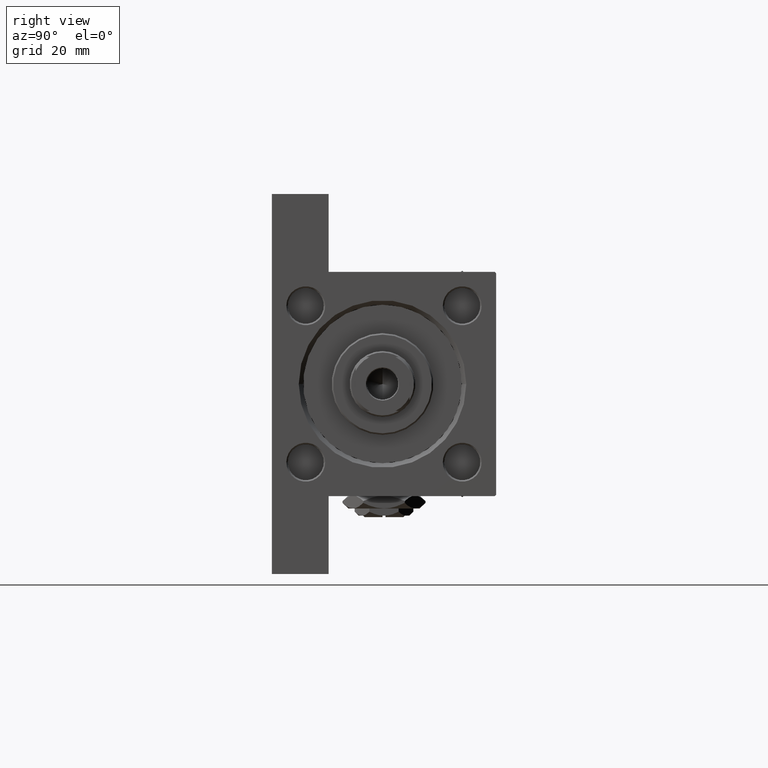
[diagram: clean part render]
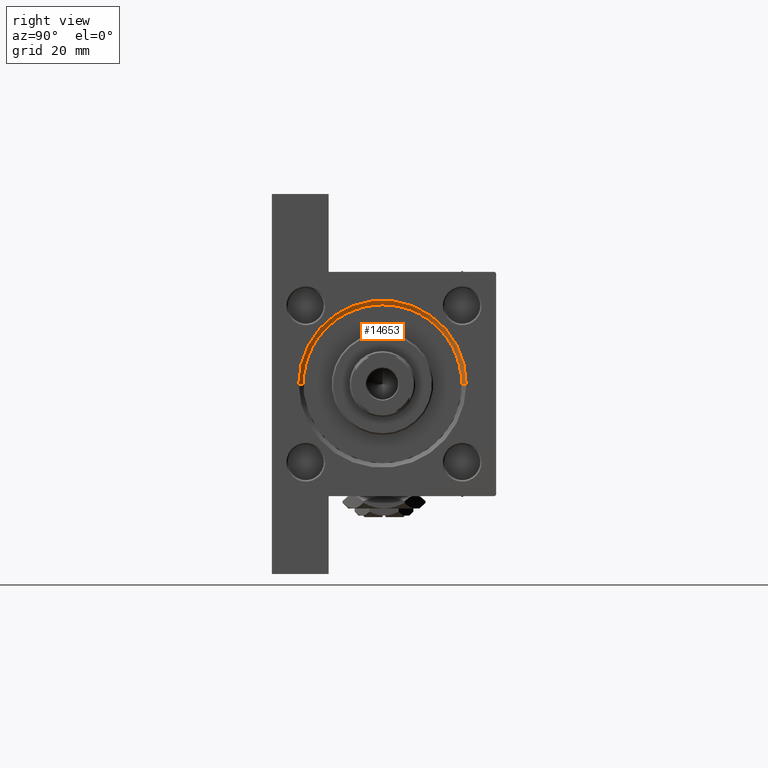
[diagram: same view with one face highlighted and labeled with its STEP entity id]
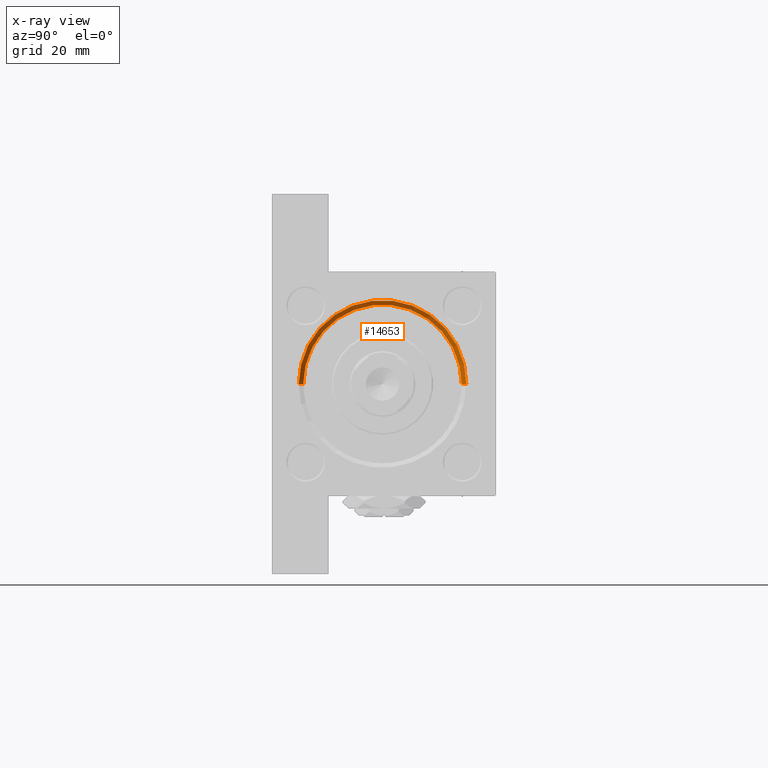
[diagram: x-ray of the same camera — body ghosted, the highlighted face saturated]
A machine part, right view. The second image highlights one B-rep face of the part: STEP entity #14653.
The next image is the same camera in x-ray: the body ghosted, the highlighted face saturated — about 0% of this face is hidden behind the body in this view.
In plain terms, the highlighted conical surface has half-angle 45 deg.
Its self-contained STEP definition (entity closure, byte-faithful):
#2651 = EDGE_CURVE ( 'NONE', #19234, #34117, #44873, .T. ) ;
#2999 = ORIENTED_EDGE ( 'NONE', *, *, #43852, .F. ) ;
#5601 = AXIS2_PLACEMENT_3D ( 'NONE', #18076, #9132, #36917 ) ;
#8273 = DIRECTION ( 'NONE',  ( 0.7071067811865361374, 8.659560562355073374E-17, 0.7071067811865588970 ) ) ;
#8446 = DIRECTION ( 'NONE',  ( 0.000000000000000000, 0.000000000000000000, 1.000000000000000000 ) ) ;
#9132 = DIRECTION ( 'NONE',  ( -1.000000000000000000, -0.000000000000000000, 0.000000000000000000 ) ) ;
#10142 = CARTESIAN_POINT ( 'NONE',  ( 154.0000000000000000, 3.429011037612588881E-15, 27.49999999999999645 ) ) ;
#11767 = CARTESIAN_POINT ( 'NONE',  ( 152.5000000000000568, 3.245314017740486554E-15, 26.00000000000000355 ) ) ;
#13104 = FACE_OUTER_BOUND ( 'NONE', #16332, .T. ) ;
#14361 = DIRECTION ( 'NONE',  ( 0.7071067811865361374, 0.000000000000000000, -0.7071067811865588970 ) ) ;
#14549 = VERTEX_POINT ( 'NONE', #23422 ) ;
#14653 = ADVANCED_FACE ( 'NONE', ( #13104 ), #34869, .F. ) ;
#16332 = EDGE_LOOP ( 'NONE', ( #39401, #47003, #39439, #2999 ) ) ;
#17505 = AXIS2_PLACEMENT_3D ( 'NONE', #31563, #28049, #8446 ) ;
#18076 = CARTESIAN_POINT ( 'NONE',  ( 154.0000000000000000, 0.000000000000000000, -0.5000000000000004441 ) ) ;
#18145 = CARTESIAN_POINT ( 'NONE',  ( 152.5000000000000568, 0.000000000000000000, -27.00000000000000355 ) ) ;
#18264 = CIRCLE ( 'NONE', #17505, 26.50000000000000355 ) ;
#19234 = VERTEX_POINT ( 'NONE', #35282 ) ;
#19914 = EDGE_CURVE ( 'NONE', #25810, #34117, #46185, .T. ) ;
#22158 = CARTESIAN_POINT ( 'NONE',  ( 152.5000000000000568, 3.245314017740486554E-15, 26.00000000000000355 ) ) ;
#23406 = EDGE_CURVE ( 'NONE', #25810, #14549, #18264, .T. ) ;
#23422 = CARTESIAN_POINT ( 'NONE',  ( 152.5000000000000568, 0.000000000000000000, -27.00000000000000355 ) ) ;
#25810 = VERTEX_POINT ( 'NONE', #22158 ) ;
#28049 = DIRECTION ( 'NONE',  ( 1.000000000000000000, 0.000000000000000000, 0.000000000000000000 ) ) ;
#28453 = DIRECTION ( 'NONE',  ( 1.000000000000000000, 0.000000000000000000, 0.000000000000000000 ) ) ;
#30469 = VECTOR ( 'NONE', #14361, 1000.000000000000114 ) ;
#31563 = CARTESIAN_POINT ( 'NONE',  ( 152.5000000000000568, 0.000000000000000000, -0.5000000000000004441 ) ) ;
#34117 = VERTEX_POINT ( 'NONE', #10142 ) ;
#34869 = CONICAL_SURFACE ( 'NONE', #42448, 26.50000000000000355, 0.7853981633974644883 ) ;
#35282 = CARTESIAN_POINT ( 'NONE',  ( 154.0000000000000000, 0.000000000000000000, -28.49999999999999645 ) ) ;
#36452 = DIRECTION ( 'NONE',  ( 0.000000000000000000, 0.000000000000000000, -1.000000000000000000 ) ) ;
#36917 = DIRECTION ( 'NONE',  ( 0.000000000000000000, 0.000000000000000000, 1.000000000000000000 ) ) ;
#37231 = LINE ( 'NONE', #18145, #30469 ) ;
#39401 = ORIENTED_EDGE ( 'NONE', *, *, #23406, .F. ) ;
#39439 = ORIENTED_EDGE ( 'NONE', *, *, #2651, .F. ) ;
#40231 = CARTESIAN_POINT ( 'NONE',  ( 152.5000000000000568, 0.000000000000000000, -0.5000000000000004441 ) ) ;
#40611 = VECTOR ( 'NONE', #8273, 1000.000000000000114 ) ;
#42448 = AXIS2_PLACEMENT_3D ( 'NONE', #40231, #28453, #36452 ) ;
#43852 = EDGE_CURVE ( 'NONE', #14549, #19234, #37231, .T. ) ;
#44873 = CIRCLE ( 'NONE', #5601, 27.99999999999999645 ) ;
#46185 = LINE ( 'NONE', #11767, #40611 ) ;
#47003 = ORIENTED_EDGE ( 'NONE', *, *, #19914, .T. ) ;